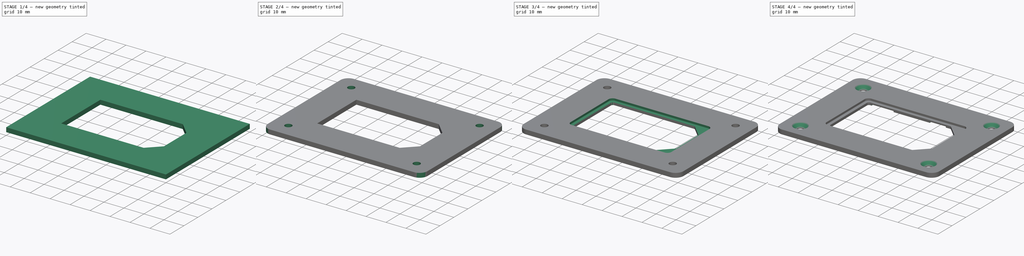
[diagram: build sequence overview — one tinted view per stage of 4, left to right]
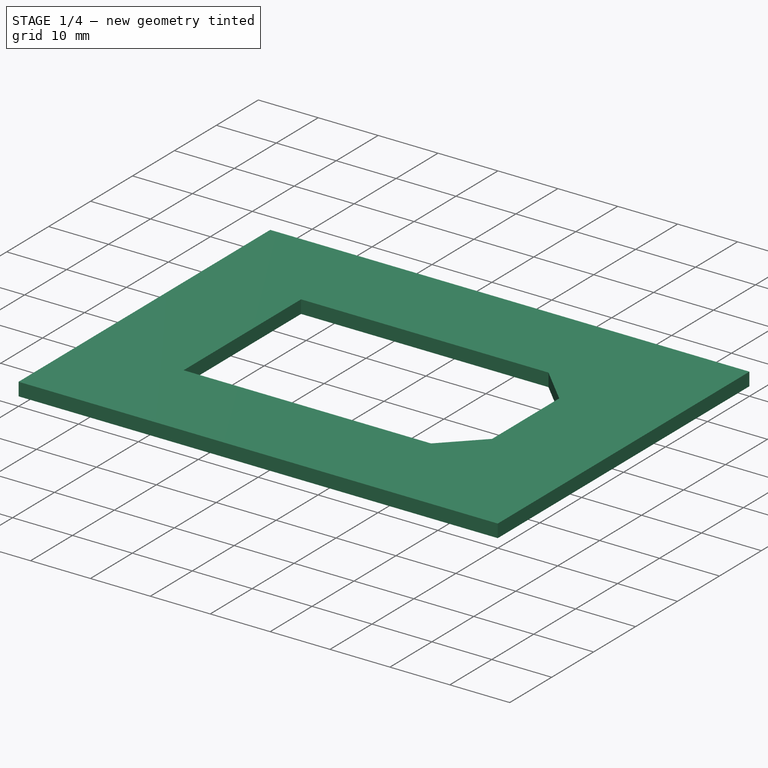
[diagram: stage 1 of 4 — iso view after this stage's code; geometry added in this stage tinted green]
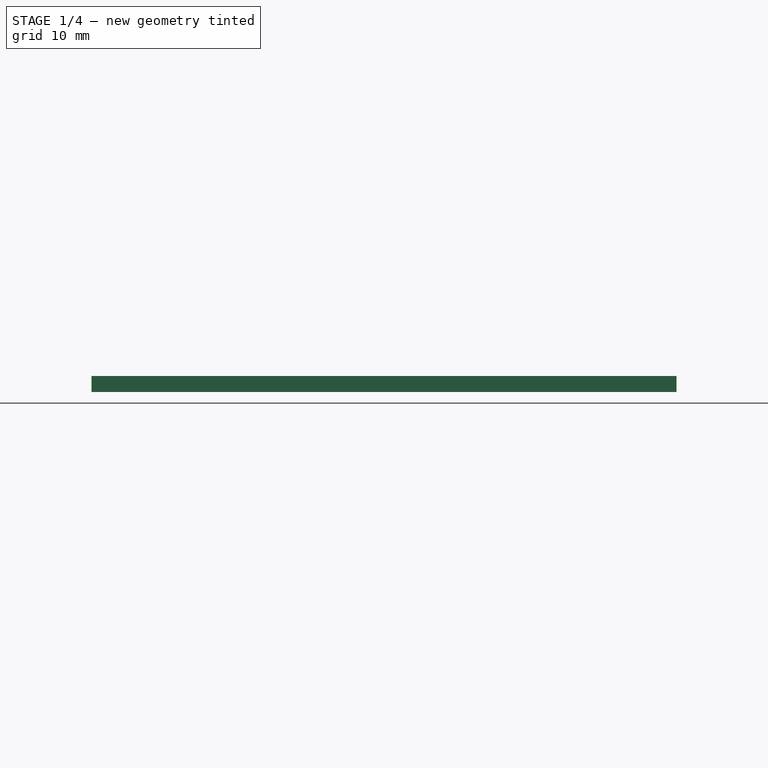
[diagram: stage 1 of 4 — front view after this stage's code; geometry added in this stage tinted green]
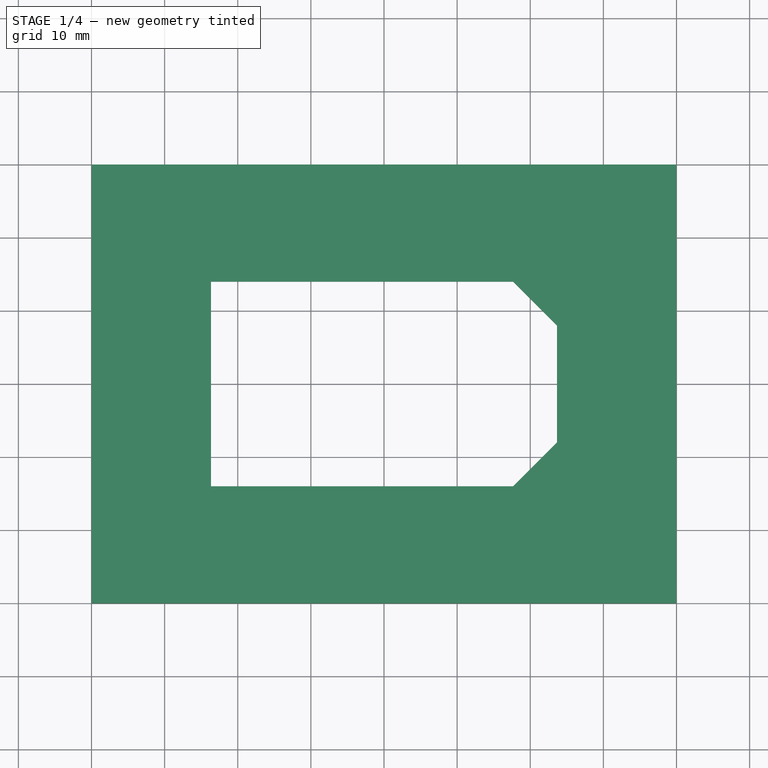
[diagram: stage 1 of 4 — top view after this stage's code; geometry added in this stage tinted green]
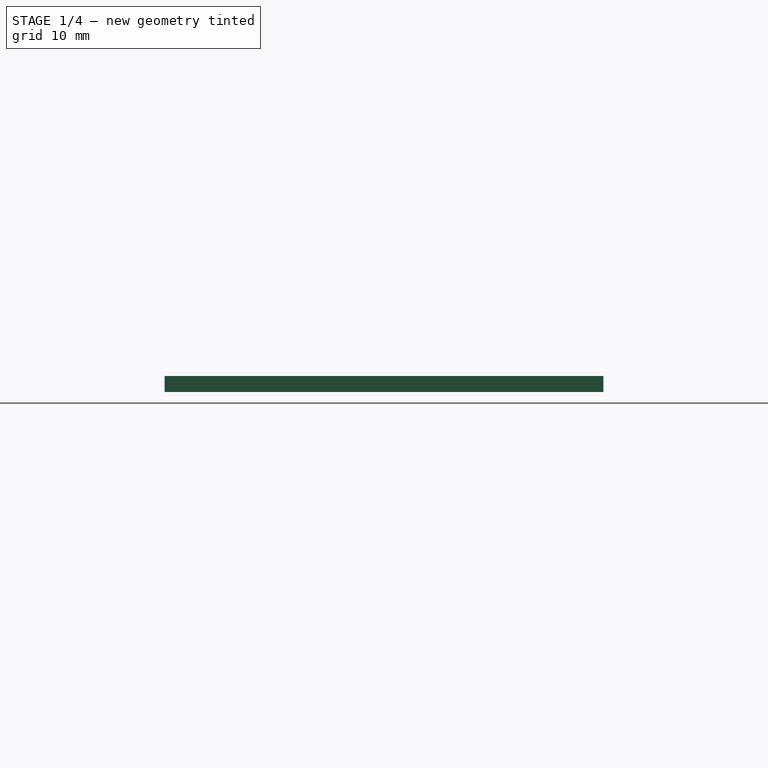
[diagram: stage 1 of 4 — right view after this stage's code; geometry added in this stage tinted green]
FCSTD DOCUMENT  (FreeCAD 0.16R6712 (Git))
Label: IEC320 backplate-for woodpanels-large
License: All rights reserved
LicenseURL: http://en.wikipedia.org/wiki/All_rights_reserved
objects: Sketcher::SketchObject×5, PartDesign::Pocket×4, PartDesign::Fillet×3, PartDesign::Pad×1, PartDesign::Chamfer×1
note: 19 computed .brp shape members not serialized (recipe doc carries the construction recipe); baked Part::Feature solids carry a one-line shape summary decoded from their .brp

FEATURE [Sketcher::SketchObject] Sketch  label="Buitenrand"
  sketch-geometry (4):
    g0: LineSegment StartX=-40 StartY=30 StartZ=0 EndX=40 EndY=30 EndZ=0
    g1: LineSegment StartX=40 StartY=30 StartZ=0 EndX=40 EndY=-30 EndZ=0
    g2: LineSegment StartX=40 StartY=-30 StartZ=0 EndX=-40 EndY=-30 EndZ=0
    g3: LineSegment StartX=-40 StartY=-30 StartZ=0 EndX=-40 EndY=30 EndZ=0
  constraints (12):
    c: Coincident(g0,g1)
    c: Coincident(g1,g2)
    c: Coincident(g2,g3)
    c: Coincident(g3,g0)
    c: Horizontal(g0)
    c: Horizontal(g2)
    c: Vertical(g1)
    c: Vertical(g3)
    c: Symmetric(g0,g0,g-2)
    c: DistanceX(g0,g0) = 80
    c: DistanceY(g1,g1) = 60
    c: Symmetric(g0,g1,g-1)
FEATURE [PartDesign::Pad] Pad
  Length = 2.2
  Length2 = 100
  Sketch = -> Sketch
  Type = 0
FEATURE [Sketcher::SketchObject] Sketch001  label="IEC320 uitsparing"
  Placement = pos=(0,0,2.2) rot=(0,0,1;0rad)
  Support = -> Pad [Face6]
  sketch-geometry (8):
    g0: LineSegment StartX=-23.65 StartY=14 StartZ=0 EndX=17.65 EndY=14 EndZ=0
    g1: LineSegment StartX=23.65 StartY=8 StartZ=0 EndX=23.65 EndY=-8 EndZ=0
    g2: LineSegment StartX=17.65 StartY=-14 StartZ=0 EndX=-23.65 EndY=-14 EndZ=0
    g3: LineSegment StartX=-23.65 StartY=-14 StartZ=0 EndX=-23.65 EndY=14 EndZ=0
    g4: LineSegment StartX=17.65 StartY=14 StartZ=0 EndX=23.65 EndY=8 EndZ=0
    g5: LineSegment StartX=23.65 StartY=-8 StartZ=0 EndX=17.65 EndY=-14 EndZ=0
    g6: GeomPoint [constr] X=-23.65 Y=0 Z=0
    g7: GeomPoint [constr] X=23.65 Y=0 Z=0
  constraints (22):
    c: Coincident(g2,g3)
    c: Coincident(g3,g0)
    c: Horizontal(g0)
    c: Horizontal(g2)
    c: Vertical(g1)
    c: Vertical(g3)
    c: Coincident(g0,g4)
    c: Coincident(g1,g4)
    c: Angle(g0,g4) = 2.35619
    c: Coincident(g2,g5)
    c: Coincident(g1,g5)
    c: Angle(g5,g2) = 2.35619
    c: DistanceY(g3,g3) = 28
    c: DistanceX(g0,g0) = 41.3
    c: Symmetric(g2,g0,g-1)
    c: Symmetric(g1,g1,g-1)
    c: PointOnObject(g6,g3)
    c: PointOnObject(g6,g-1)
    c: PointOnObject(g7,g1)
    c: PointOnObject(g7,g-1)
    c: Symmetric(g7,g6,g-2)
    c: DistanceX(g6,g7) = 47.3
FEATURE [PartDesign::Pocket] Pocket
  Length = 5
  Sketch = -> Sketch001
  Type = 1
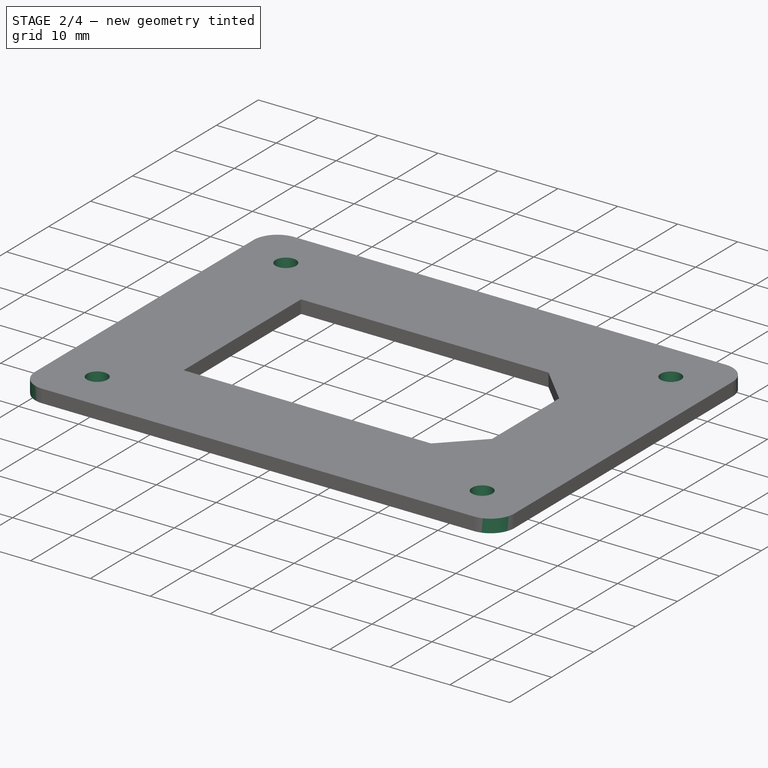
[diagram: stage 2 of 4 — iso view after this stage's code; geometry added in this stage tinted green]
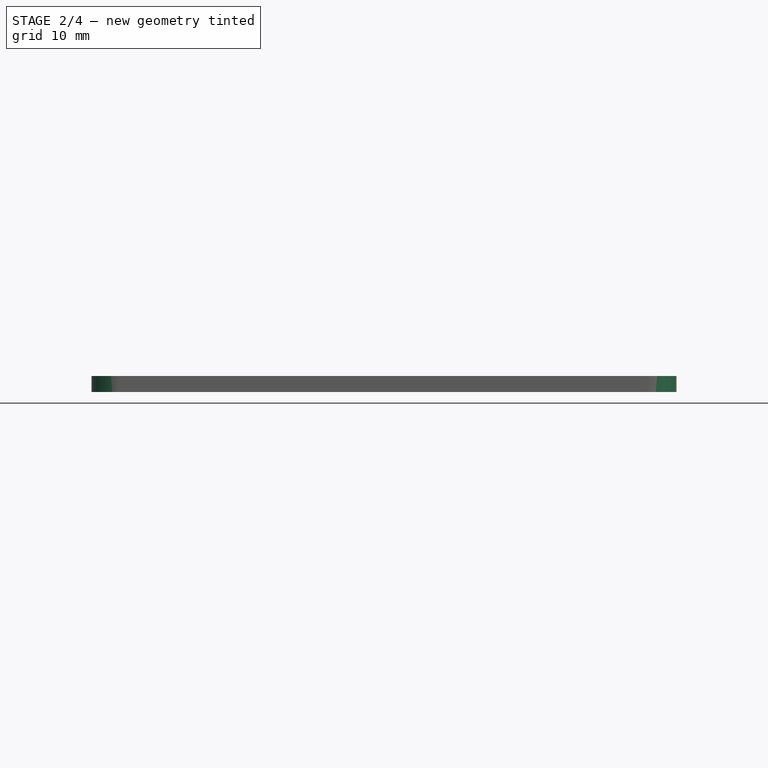
[diagram: stage 2 of 4 — front view after this stage's code; geometry added in this stage tinted green]
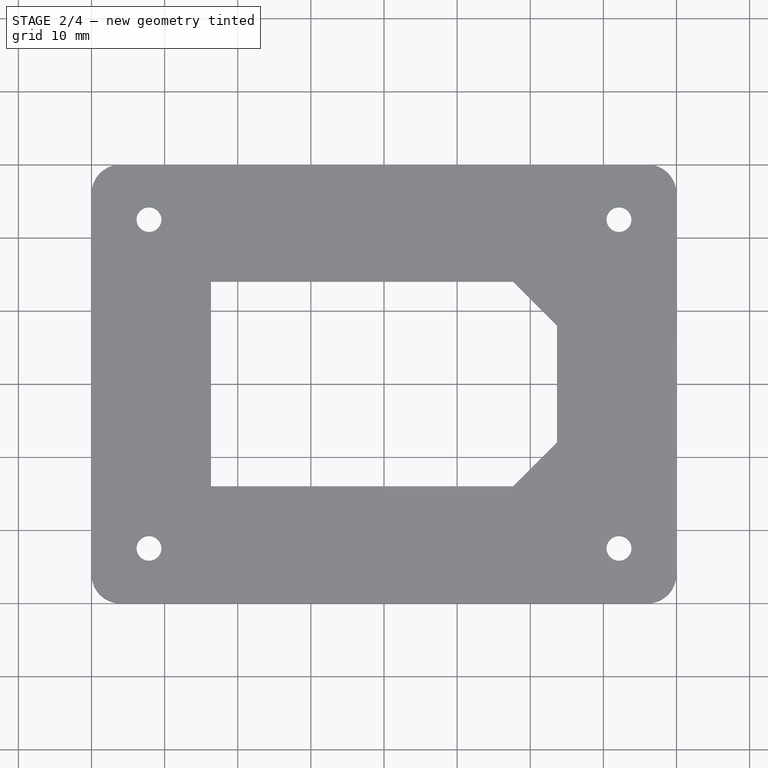
[diagram: stage 2 of 4 — top view after this stage's code; geometry added in this stage tinted green]
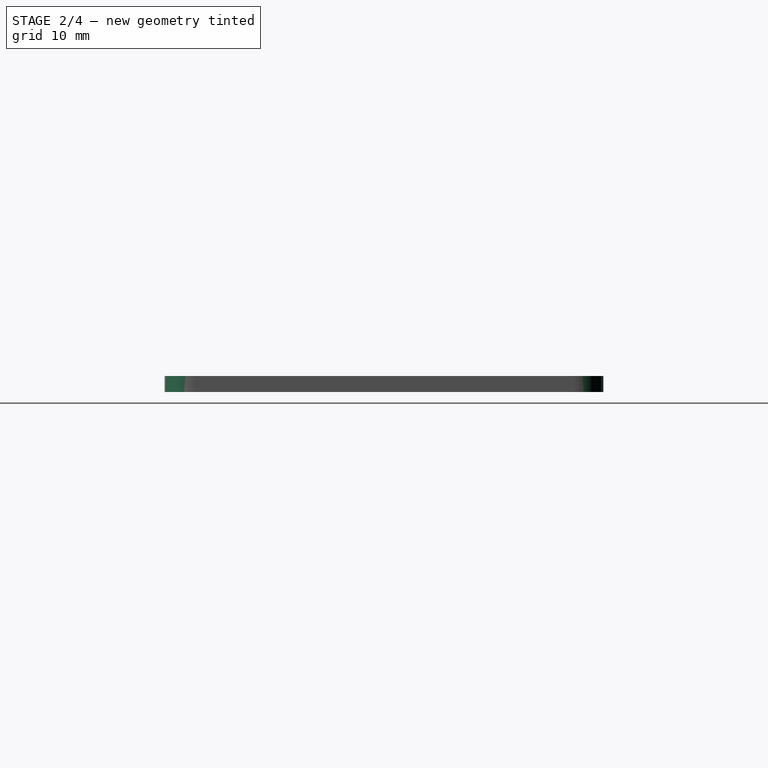
[diagram: stage 2 of 4 — right view after this stage's code; geometry added in this stage tinted green]
FEATURE [PartDesign::Fillet] Fillet  label="Afronding IEC320"
  Base = -> Pocket [Edge5,Edge1,Edge8,Edge2]
  Radius = 4
FEATURE [Sketcher::SketchObject] Sketch002  label="Schroefgaatjes"
  ExternalGeometry = -> [Fillet]
  Placement = pos=(0,0,2.2) rot=(0,0,1;0rad)
  Support = -> Fillet [Face5]
  sketch-geometry (9):
    g0: LineSegment [constr] StartX=-32.1353 StartY=22.4853 StartZ=0 EndX=32.1353 EndY=22.4853 EndZ=0
    g1: LineSegment [constr] StartX=32.1353 StartY=22.4853 StartZ=0 EndX=32.1353 EndY=-22.4853 EndZ=0
    g2: LineSegment [constr] StartX=32.1353 StartY=-22.4853 StartZ=0 EndX=-32.1353 EndY=-22.4853 EndZ=0
    g3: LineSegment [constr] StartX=-32.1353 StartY=-22.4853 StartZ=0 EndX=-32.1353 EndY=22.4853 EndZ=0
    g4: LineSegment [constr] StartX=-23.65 StartY=-14 StartZ=0 EndX=-36.0954 EndY=-26.4454 EndZ=0
    g5: Circle CenterX=-32.1353 CenterY=22.4853 CenterZ=0 NormalX=0 NormalY=0 NormalZ=1 Radius=1.7
    g6: Circle CenterX=32.1353 CenterY=22.4853 CenterZ=0 NormalX=0 NormalY=0 NormalZ=1 Radius=1.7
    g7: Circle CenterX=32.1353 CenterY=-22.4853 CenterZ=0 NormalX=0 NormalY=0 NormalZ=1 Radius=1.7
    g8: Circle CenterX=-32.1353 CenterY=-22.4853 CenterZ=0 NormalX=0 NormalY=0 NormalZ=1 Radius=1.7
  constraints (22):
    c: Coincident(g0,g1)
    c: Coincident(g1,g2)
    c: Coincident(g2,g3)
    c: Coincident(g3,g0)
    c: Horizontal(g0)
    c: Horizontal(g2)
    c: Vertical(g1)
    c: Vertical(g3)
    c: Symmetric(g0,g0,g-2)
    c: Symmetric(g0,g1,g-1)
    c: Coincident(g4,g-10)
    c: Angle(g4,g-10) = 2.35619
    c: PointOnObject(g2,g4)
    c: Distance(g2,g4) = 12
    c: Coincident(g5,g0)
    c: Coincident(g6,g0)
    c: Coincident(g7,g1)
    c: Coincident(g8,g2)
    c: Equal(g5,g6)
    c: Equal(g6,g7)
    c: Equal(g7,g8)
    c: Radius(g6) = 1.7
FEATURE [PartDesign::Pocket] Pocket001
  Length = 5
  Sketch = -> Sketch002
  Type = 1
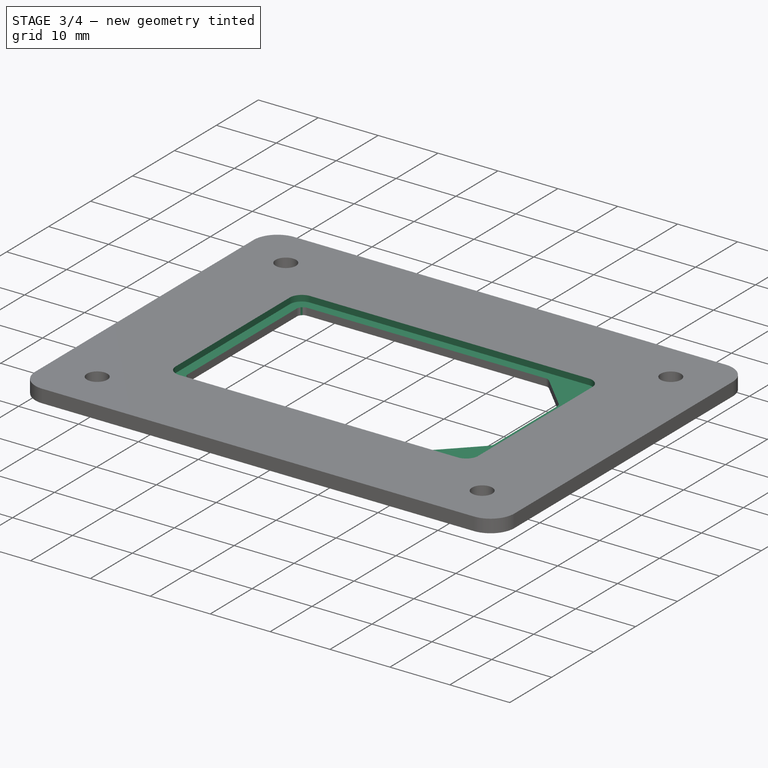
[diagram: stage 3 of 4 — iso view after this stage's code; geometry added in this stage tinted green]
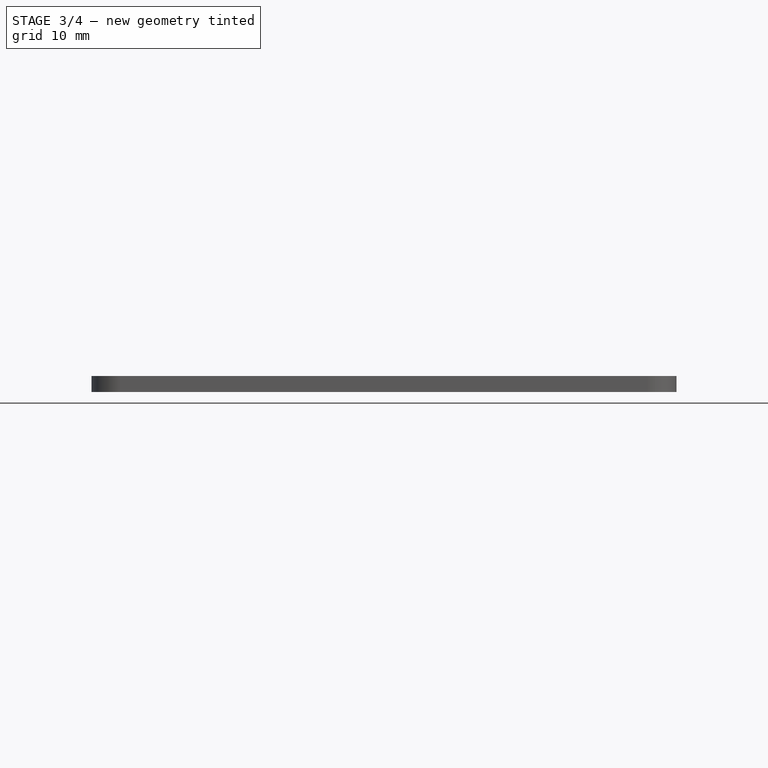
[diagram: stage 3 of 4 — front view after this stage's code; geometry added in this stage tinted green]
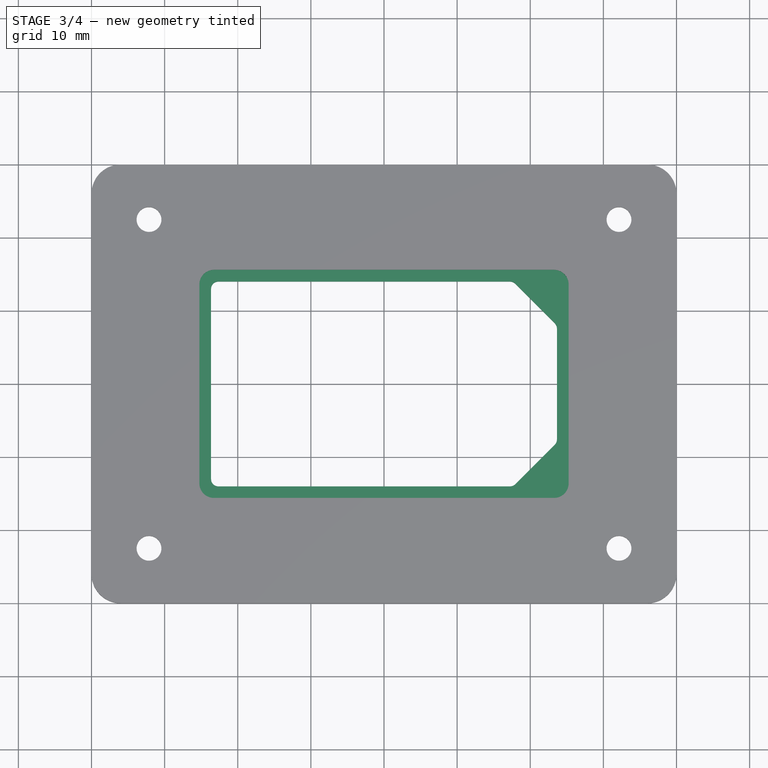
[diagram: stage 3 of 4 — top view after this stage's code; geometry added in this stage tinted green]
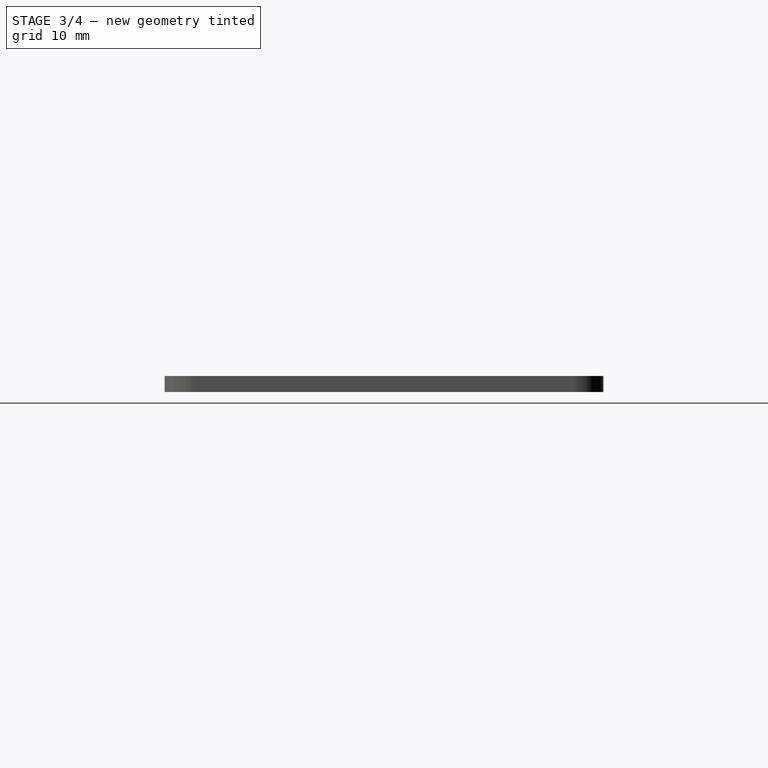
[diagram: stage 3 of 4 — right view after this stage's code; geometry added in this stage tinted green]
FEATURE [Sketcher::SketchObject] Sketch003  label="Verdieping IEC320"
  Placement = pos=(0,0,2.2) rot=(0,0,1;0rad)
  Support = -> Pocket001 [Face5]
  sketch-geometry (4):
    g0: LineSegment StartX=-25.25 StartY=15.6 StartZ=0 EndX=25.25 EndY=15.6 EndZ=0
    g1: LineSegment StartX=25.25 StartY=15.6 StartZ=0 EndX=25.25 EndY=-15.6 EndZ=0
    g2: LineSegment StartX=25.25 StartY=-15.6 StartZ=0 EndX=-25.25 EndY=-15.6 EndZ=0
    g3: LineSegment StartX=-25.25 StartY=-15.6 StartZ=0 EndX=-25.25 EndY=15.6 EndZ=0
  constraints (12):
    c: Coincident(g0,g1)
    c: Coincident(g1,g2)
    c: Coincident(g2,g3)
    c: Coincident(g3,g0)
    c: Horizontal(g0)
    c: Horizontal(g2)
    c: Vertical(g1)
    c: Vertical(g3)
    c: Symmetric(g0,g0,g-2)
    c: Symmetric(g0,g1,g-1)
    c: DistanceX(g0,g0) = 50.5
    c: DistanceY(g1,g1) = 31.2
FEATURE [PartDesign::Pocket] Pocket002
  Length = 1
  Sketch = -> Sketch003
  Type = 0
FEATURE [PartDesign::Fillet] Fillet001
  Base = -> Pocket002 [Edge62,Edge64,Edge59,Edge61]
  Radius = 2
FEATURE [PartDesign::Fillet] Fillet002
  Base = -> Fillet001 [Edge78,Edge77,Edge73,Edge74,Edge76,Edge75]
  Radius = 1
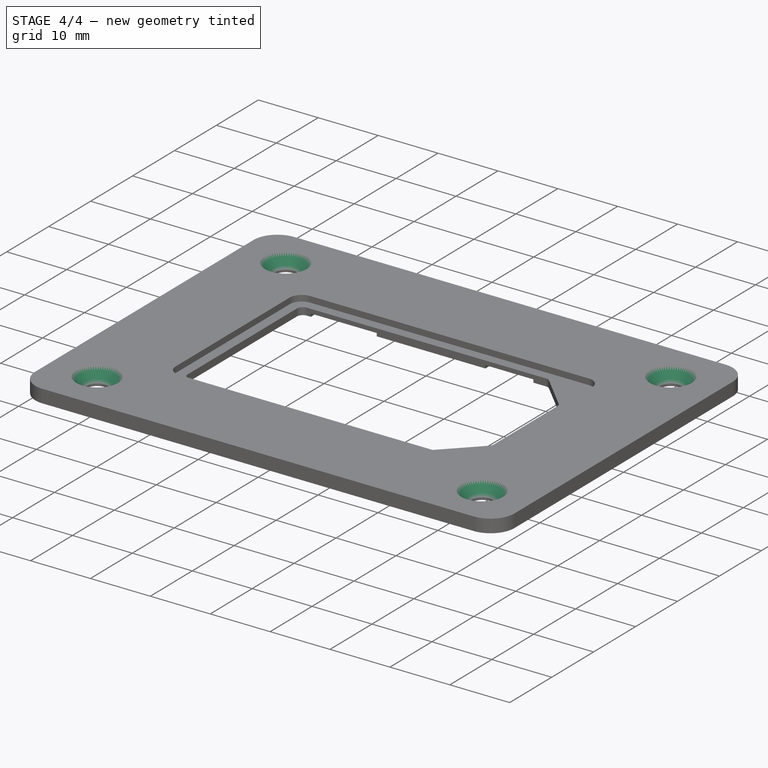
[diagram: stage 4 of 4 — iso view after this stage's code; geometry added in this stage tinted green]
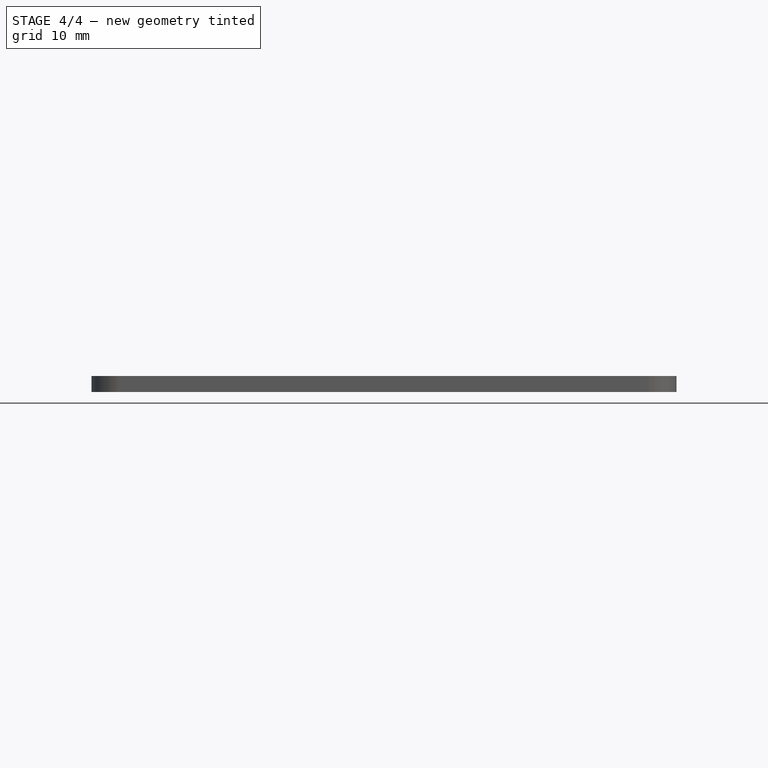
[diagram: stage 4 of 4 — front view after this stage's code; geometry added in this stage tinted green]
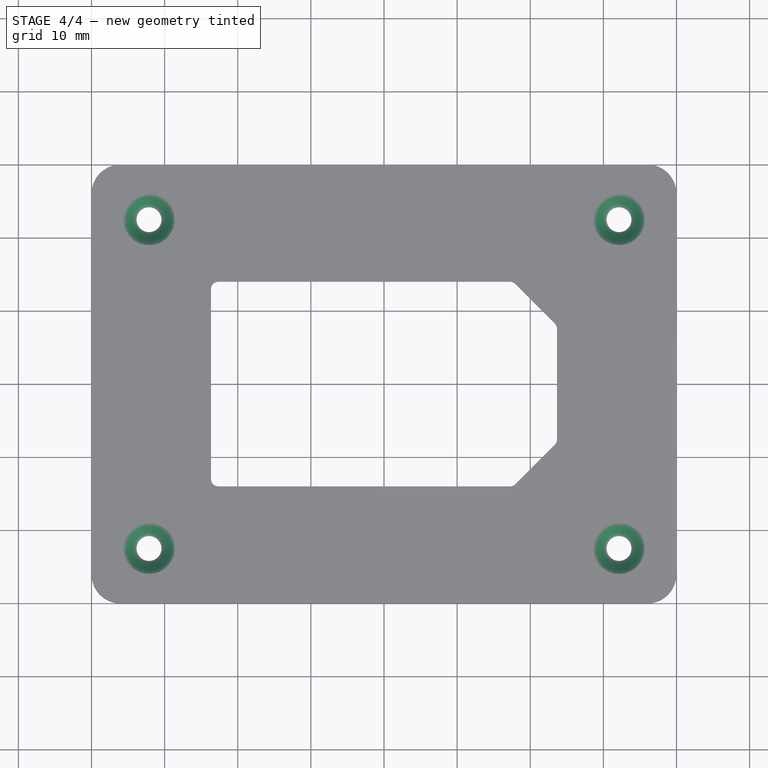
[diagram: stage 4 of 4 — top view after this stage's code; geometry added in this stage tinted green]
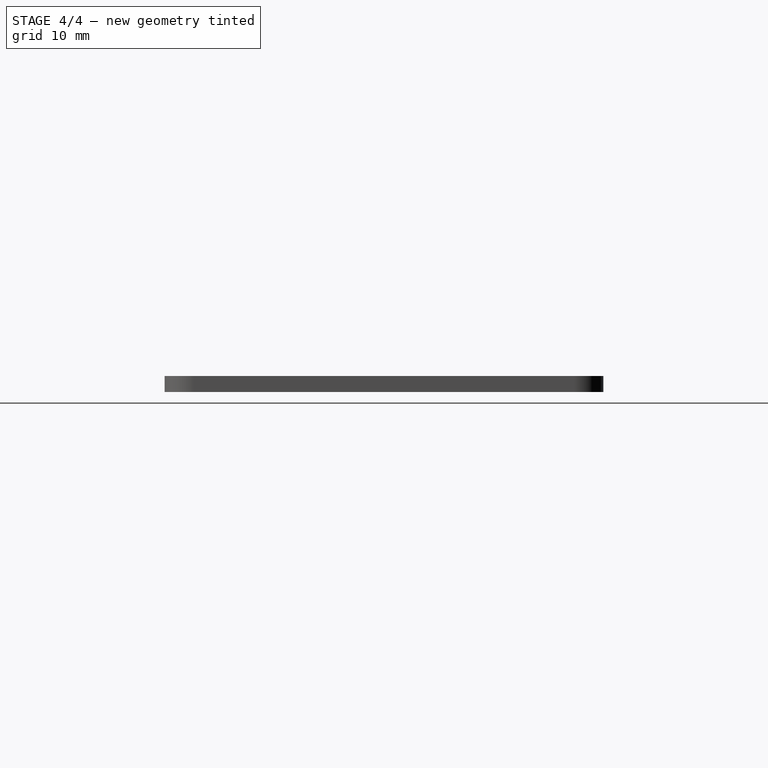
[diagram: stage 4 of 4 — right view after this stage's code; geometry added in this stage tinted green]
FEATURE [PartDesign::Chamfer] Chamfer
  Base = -> Fillet002 [Edge81,Edge84,Edge83,Edge82]
  Size = 1.8
FEATURE [Sketcher::SketchObject] Sketch004  label="Clipjes uitsparingen"
  Placement = pos=(0,0,0) rot=(1,0,0;3.14159rad)
  Support = -> Chamfer [Face24]
  sketch-geometry (16):
    g0: LineSegment StartX=-22.0105 StartY=14.9841 StartZ=0 EndX=-11.0105 EndY=14.9841 EndZ=0
    g1: LineSegment StartX=-11.0105 StartY=14.9841 StartZ=0 EndX=-11.0105 EndY=13.9841 EndZ=0
    g2: LineSegment StartX=-11.0105 StartY=13.9841 StartZ=0 EndX=-22.0105 EndY=13.9841 EndZ=0
    g3: LineSegment StartX=-22.0105 StartY=13.9841 StartZ=0 EndX=-22.0105 EndY=14.9841 EndZ=0
    g4: LineSegment StartX=-22.0105 StartY=-13.9792 StartZ=0 EndX=-11.0105 EndY=-13.9792 EndZ=0
    g5: LineSegment StartX=-11.0105 StartY=-13.9792 StartZ=0 EndX=-11.0105 EndY=-14.9792 EndZ=0
    g6: LineSegment StartX=-11.0105 StartY=-14.9792 StartZ=0 EndX=-22.0105 EndY=-14.9792 EndZ=0
    g7: LineSegment StartX=-22.0105 StartY=-14.9792 StartZ=0 EndX=-22.0105 EndY=-13.9792 EndZ=0
    g8: LineSegment StartX=7.1315 StartY=14.9841 StartZ=0 EndX=15.1315 EndY=14.9841 EndZ=0
    g9: LineSegment StartX=15.1315 StartY=14.9841 StartZ=0 EndX=15.1315 EndY=13.9841 EndZ=0
    g10: LineSegment StartX=15.1315 StartY=13.9841 StartZ=0 EndX=7.1315 EndY=13.9841 EndZ=0
    g11: LineSegment StartX=7.1315 StartY=13.9841 StartZ=0 EndX=7.1315 EndY=14.9841 EndZ=0
    g12: LineSegment StartX=7.1315 StartY=-13.9792 StartZ=0 EndX=15.1315 EndY=-13.9792 EndZ=0
    g13: LineSegment StartX=15.1315 StartY=-13.9792 StartZ=0 EndX=15.1315 EndY=-14.9792 EndZ=0
    g14: LineSegment StartX=15.1315 StartY=-14.9792 StartZ=0 EndX=7.1315 EndY=-14.9792 EndZ=0
    g15: LineSegment StartX=7.1315 StartY=-14.9792 StartZ=0 EndX=7.1315 EndY=-13.9792 EndZ=0
  constraints (44):
    c: Coincident(g0,g1)
    c: Coincident(g1,g2)
    c: Coincident(g2,g3)
    c: Coincident(g3,g0)
    c: Horizontal(g0)
    c: Horizontal(g2)
    c: Vertical(g1)
    c: Vertical(g3)
    c: Coincident(g4,g5)
    c: Coincident(g5,g6)
    c: Coincident(g6,g7)
    c: Coincident(g7,g4)
    c: Horizontal(g4)
    c: Horizontal(g6)
    c: Vertical(g5)
    c: Vertical(g7)
    c: DistanceX(g2,g4) = 0
    c: Equal(g4,g2)
    c: Equal(g5,g1)
    c: Coincident(g8,g9)
    c: Coincident(g9,g10)
    c: Coincident(g10,g11)
    c: Coincident(g11,g8)
    c: Horizontal(g8)
    c: Horizontal(g10)
    c: Vertical(g9)
    c: Vertical(g11)
    c: Coincident(g12,g13)
    c: Coincident(g13,g14)
    c: Coincident(g14,g15)
    c: Coincident(g15,g12)
    c: Horizontal(g12)
    c: Horizontal(g14)
    c: Vertical(g13)
    c: Vertical(g15)
    c: DistanceX(g12,g10) = 0
    c: Equal(g12,g10)
    c: Equal(g9,g13)
    c: DistanceY(g10,g1) = 0
    c: DistanceY(g4,g12) = 0
    c: DistanceY(g13,g13) = 1
    c: DistanceY(g1,g1) = 1
    c: DistanceX(g0,g0) = 11
    c: DistanceX(g8,g8) = 8
FEATURE [PartDesign::Pocket] Pocket003
  Length = 0.5
  Sketch = -> Sketch004
  Type = 0
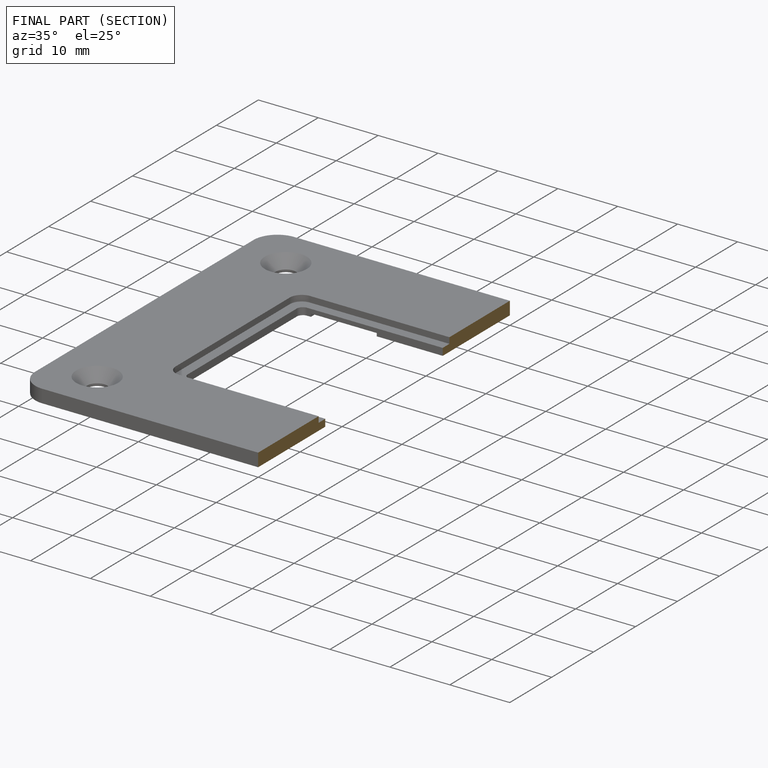
[diagram: finished part — half-section view (interior)]
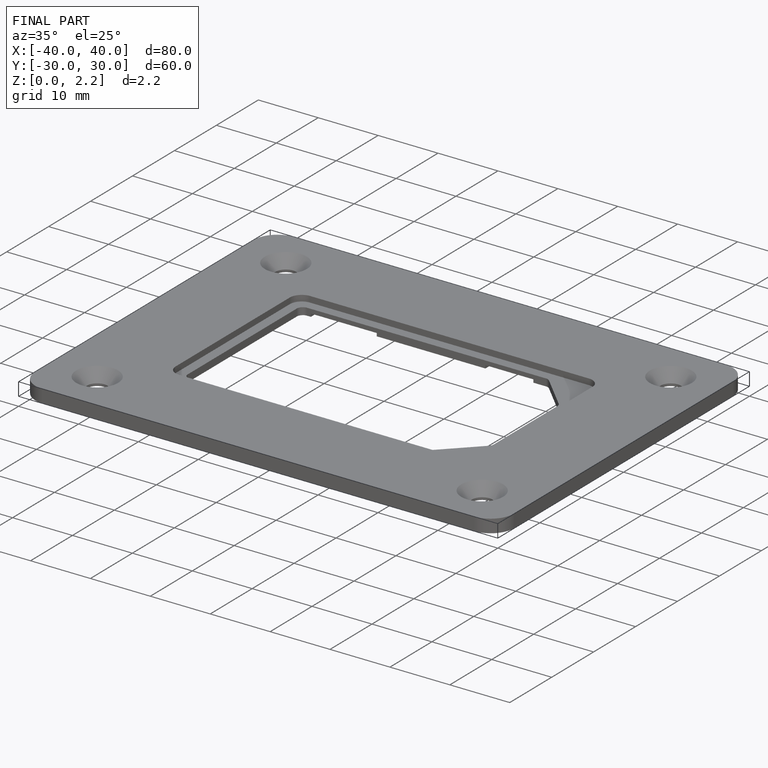
[diagram: finished part — iso view with bounding-box wireframe]
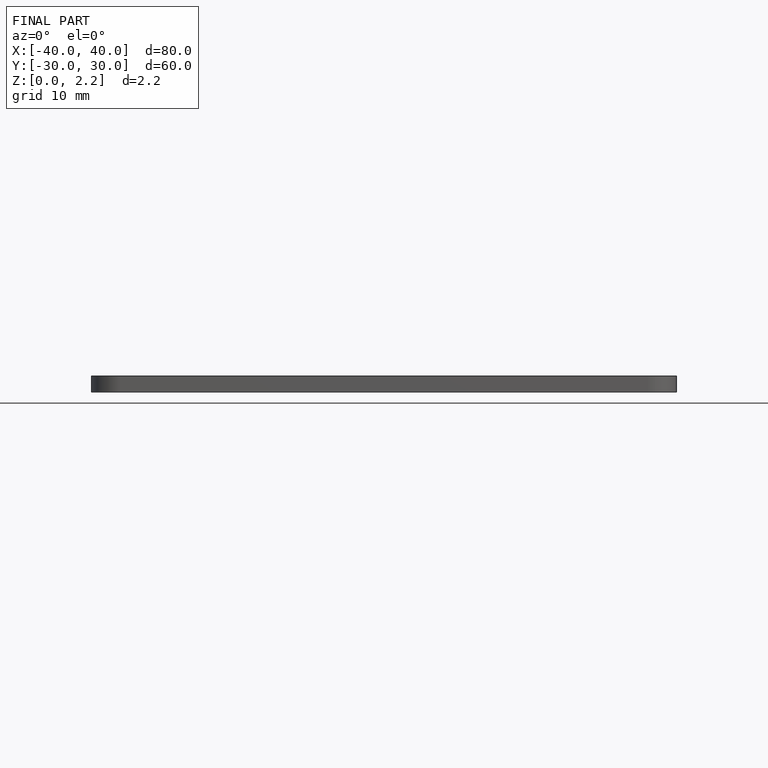
[diagram: finished part — front view with bounding-box wireframe]
